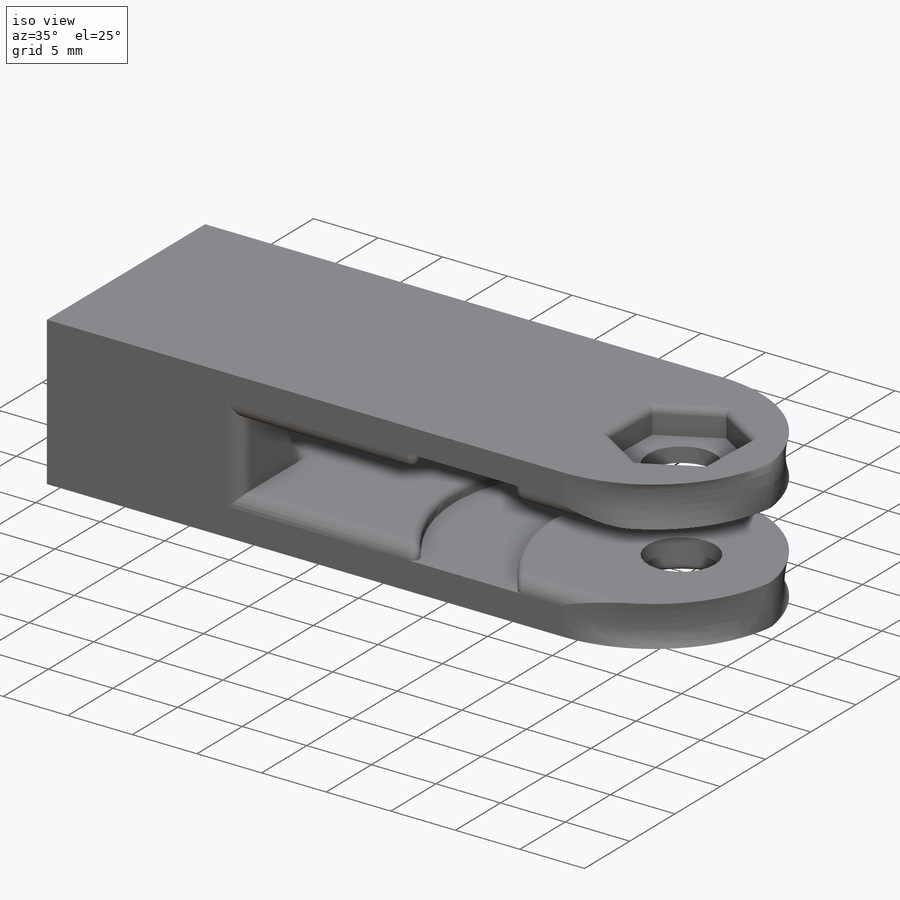
[diagram: iso view]
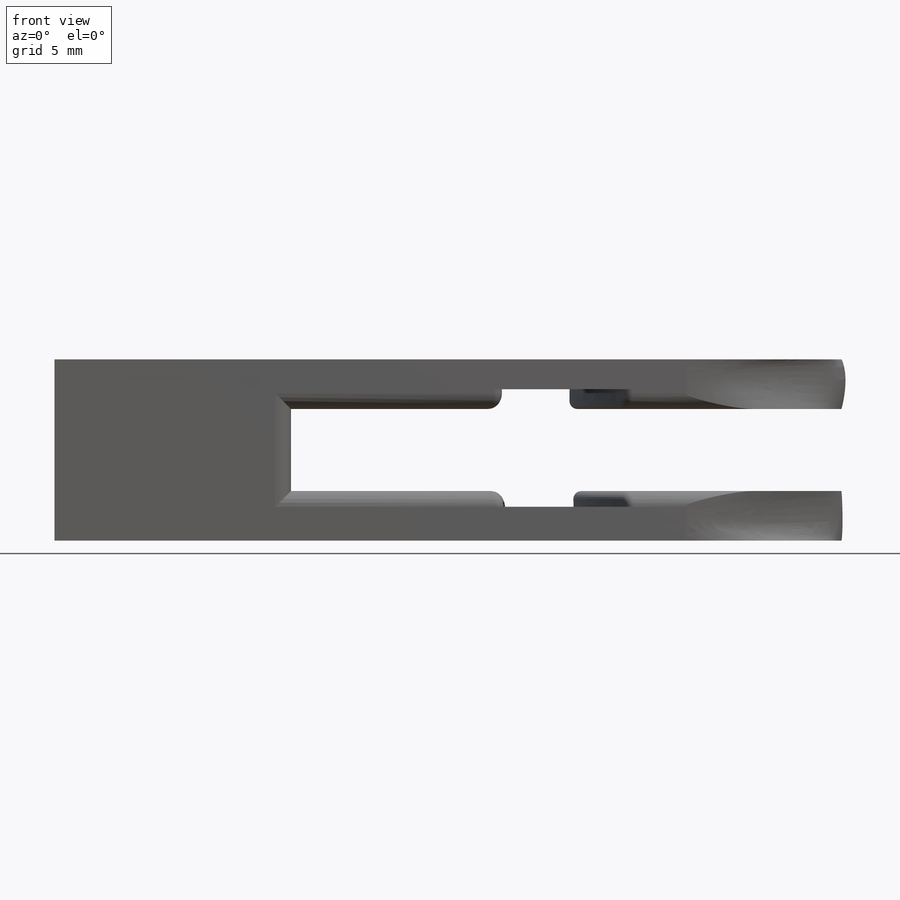
[diagram: front view]
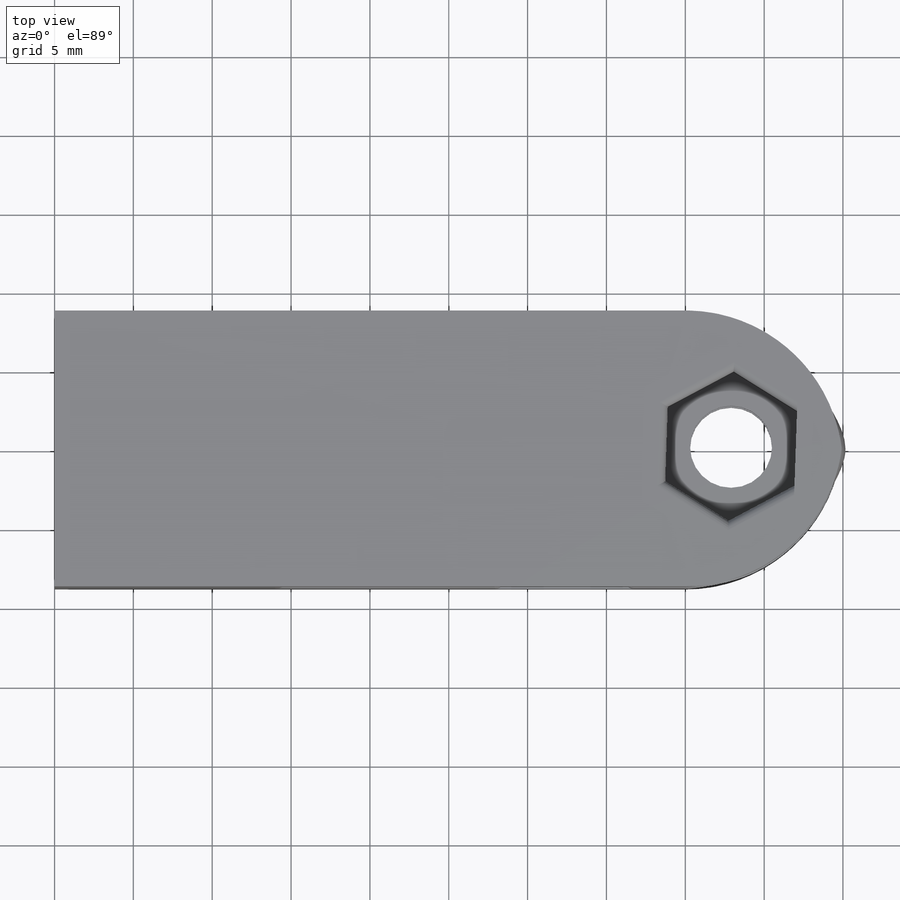
[diagram: top view]
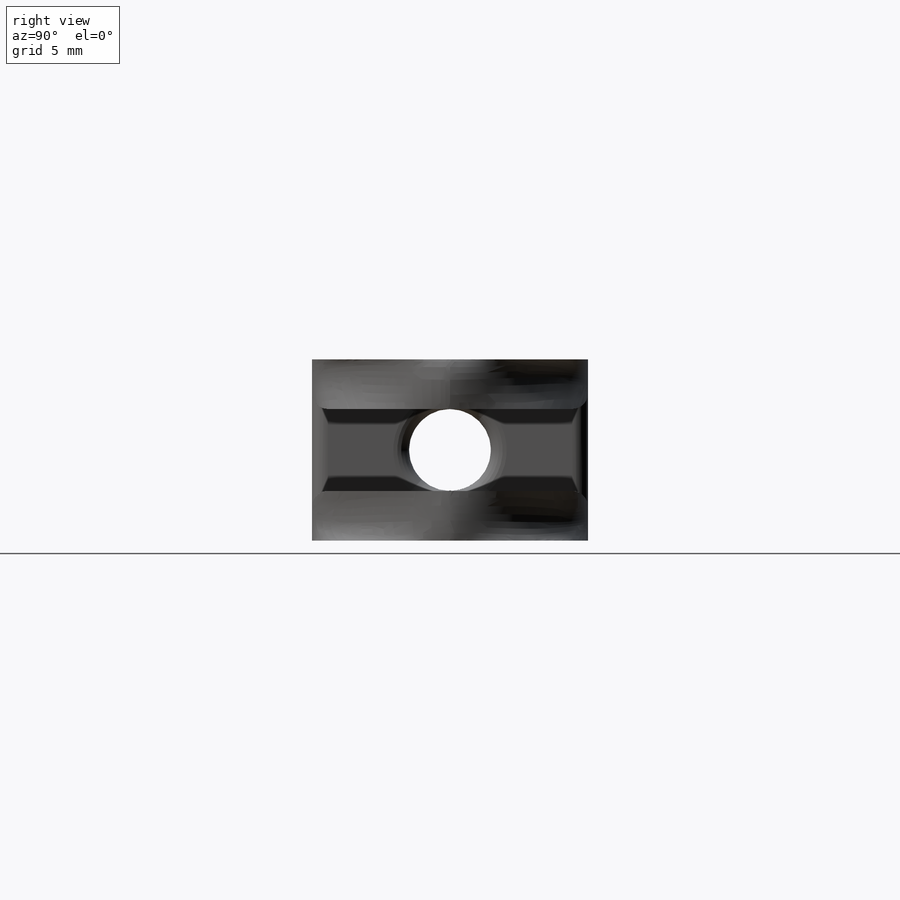
[diagram: right view]
SOLIDWORKS PART (.sldprt)
format: sldprt  version: not decoded by parser v0  size: 1,135,104 bytes
history: native  units: mm
features: fillet x10, sketch x9, cut_extrude x8, material x1, extrude x1 (+13 scaffold rows collapsed)
feature tree (42):
  scaffold x13  (default folders/planes/origin — collapsed)
  material  "Material <not specified>"
  sketch  "Sketch1"  dims[D1=17.5mm D2=11.5mm]
  extrude  "Boss-Extrude1"  Depth=50mm
  sketch  "Sketch2"  dims[D1=5.2mm]
  cut_extrude  "Cut-Extrude1"  Depth=35mm
  fillet  "Fillet1"  Radius=10mm
  fillet  "Fillet2"  Radius=1mm
  sketch  "Sketch3"  dims[D2=5.2mm D1=7.0mm]
  cut_extrude  "Cut-Extrude2"  [1 undecoded]
  sketch  "Sketch5"  dims[D1=8.5mm]
  cut_extrude  "Cut-Extrude4"  Depth=2mm
  sketch  "Sketch6"  dims[D1=5.2mm]
  cut_extrude  "Cut-Extrude5"  Depth=25mm
  sketch  "Sketch7"  dims[D1=8.2mm D2=4.1mm]
  cut_extrude  "Cut-Extrude6"  Depth=13.5mm
  fillet  "Fillet3"  Radius=1mm
  fillet  "Fillet4"  Radius=1mm
  fillet  "Fillet5"  Radius=1mm
  fillet  "Fillet6"  Radius=0.5mm
  fillet  "Fillet7"  Radius=0.25mm
  sketch  "Sketch8"  dims[D1=8.2mm]
  cut_extrude  "Cut-Extrude7"  Depth=2mm
  sketch  "Sketch9"  dims[c1.D2=~18.310222mm c1.D5=5.2mm c1.D6=5.2mm c1.D1=7.5mm c2.D2=7.5mm c2.D3=7.5mm c2.D4=10.25mm c2.D5=11.0mm c2.D6=11.0mm]
  cut_extrude  "Cut-Extrude11"  Depth=1.25mm
  fillet  "Fillet10"  Radius=0.5mm
  sketch  "Sketch11"  dims[D1=7.5mm D2=7.5mm D3=7.5mm D4=10.0mm D5=11.0mm D6=11.0mm]
  cut_extrude  "Cut-Extrude12"  [1 undecoded]
  fillet  "Fillet11"  Radius=0.5mm
  fillet  "Fillet13"  Radius=0.5mm
decode coverage: 26 of 28 modeling features carry decoded parameters
note: ~ marks probable driven/reference dimensions
note: 2 parameter values undecoded
note: suppression state not decoded; provenance and decode notes live in map.json
